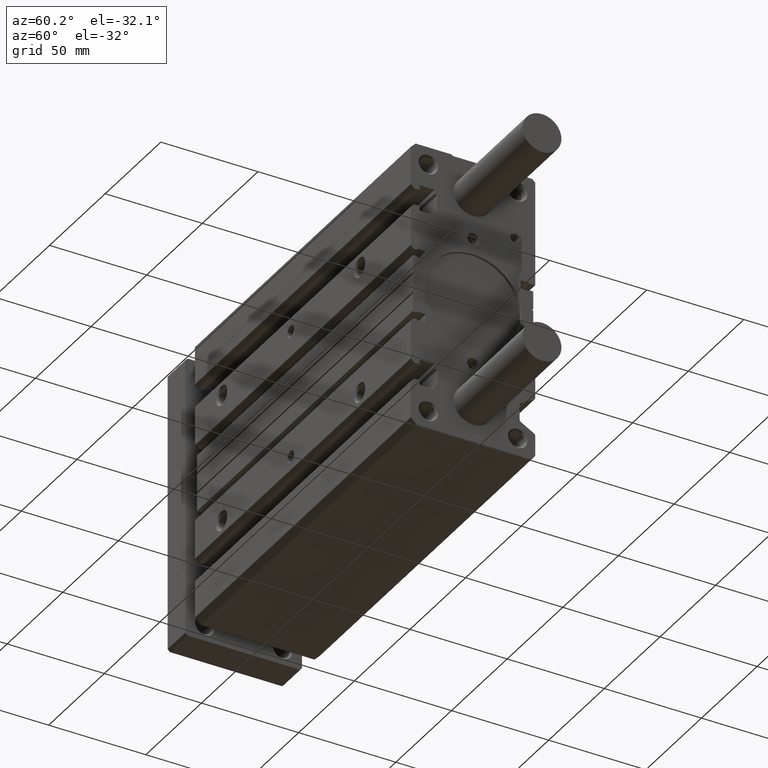
[diagram: clean part render]
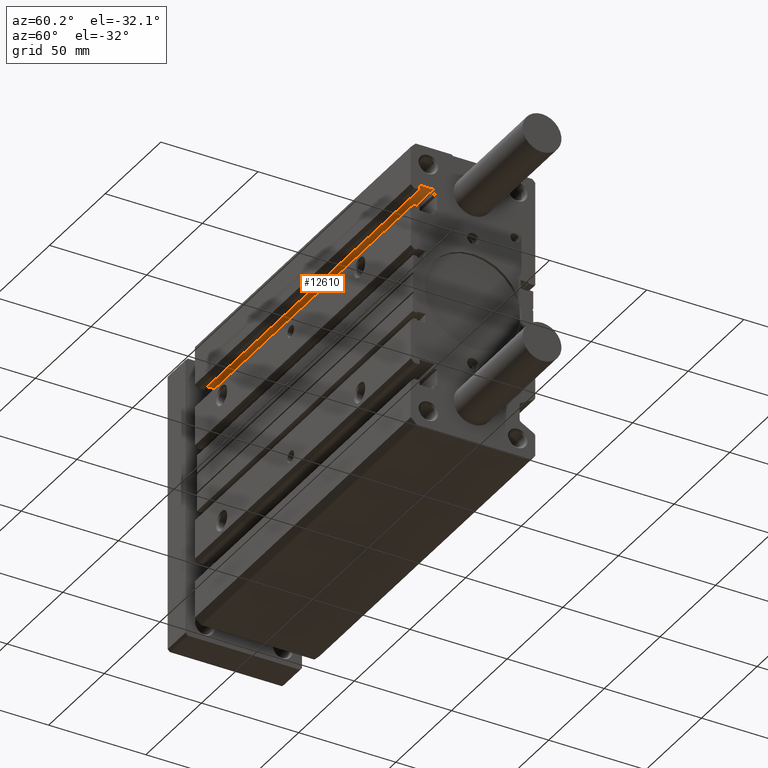
[diagram: same view with one face highlighted and labeled with its STEP entity id]
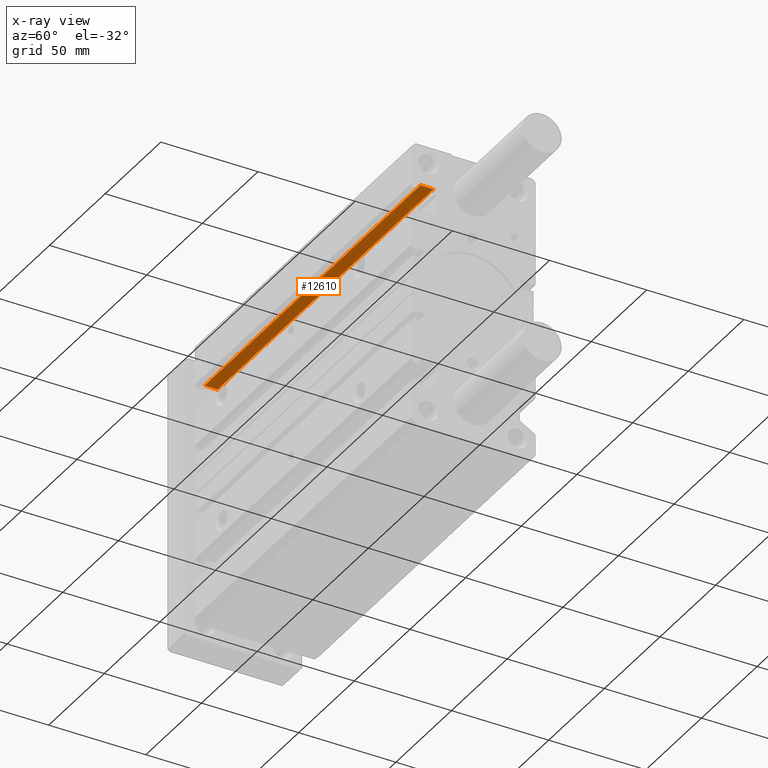
[diagram: x-ray of the same camera — body ghosted, the highlighted face saturated]
A machine part, auxiliary view. The second image highlights one B-rep face of the part: STEP entity #12610.
The next image is the same camera in x-ray: the body ghosted, the highlighted face saturated — about 0% of this face is hidden behind the body in this view.
In plain terms, the highlighted planar face has unit normal (0, 0, -1).
Its self-contained STEP definition (entity closure, byte-faithful):
#657 = ORIENTED_EDGE ( 'NONE', *, *, #12963, .T. ) ;
#851 = CARTESIAN_POINT ( 'NONE',  ( 0.000000000000000000, -20.39999999995000479, 52.70000174639989865 ) ) ;
#1683 = DIRECTION ( 'NONE',  ( -0.000000000000000000, -1.000000000000000000, -0.000000000000000000 ) ) ;
#1793 = CARTESIAN_POINT ( 'NONE',  ( 0.000000000000000000, -20.39999999995000479, 52.70000174639989865 ) ) ;
#2794 = DIRECTION ( 'NONE',  ( 0.000000000000000000, 0.000000000000000000, -1.000000000000000000 ) ) ;
#3994 = DIRECTION ( 'NONE',  ( -1.000000000000000000, 0.000000000000000000, -0.000000000000000000 ) ) ;
#4187 = ORIENTED_EDGE ( 'NONE', *, *, #5545, .T. ) ;
#4771 = VECTOR ( 'NONE', #10212, 1000.000000000000000 ) ;
#5263 = VECTOR ( 'NONE', #8022, 1000.000000000000000 ) ;
#5545 = EDGE_CURVE ( 'NONE', #10598, #5970, #10862, .T. ) ;
#5853 = PLANE ( 'NONE',  #6079 ) ;
#5960 = CARTESIAN_POINT ( 'NONE',  ( 0.000000000000000000, -20.40000329734540330, 52.70000174640669854 ) ) ;
#5970 = VERTEX_POINT ( 'NONE', #5960 ) ;
#6079 = AXIS2_PLACEMENT_3D ( 'NONE', #1793, #2794, #3994 ) ;
#7174 = LINE ( 'NONE', #9348, #4771 ) ;
#7370 = CARTESIAN_POINT ( 'NONE',  ( 0.000000000000000000, -27.09999999995000053, 52.70000174639989865 ) ) ;
#7577 = VECTOR ( 'NONE', #10464, 1000.000000000000000 ) ;
#7628 = LINE ( 'NONE', #7370, #7577 ) ;
#7796 = CARTESIAN_POINT ( 'NONE',  ( 194.0000000000000000, -27.09999856197575241, 52.70000174639989865 ) ) ;
#8022 = DIRECTION ( 'NONE',  ( 0.000000000000000000, 1.000000000000000000, 0.000000000000000000 ) ) ;
#8058 = CARTESIAN_POINT ( 'NONE',  ( 194.0000000000000000, -20.40000329734540330, 52.70000174640669854 ) ) ;
#8658 = VERTEX_POINT ( 'NONE', #7796 ) ;
#8706 = LINE ( 'NONE', #12740, #9447 ) ;
#8738 = VERTEX_POINT ( 'NONE', #8058 ) ;
#9348 = CARTESIAN_POINT ( 'NONE',  ( 0.000000000000000000, -20.40000329734540330, 52.70000174641349133 ) ) ;
#9352 = EDGE_CURVE ( 'NONE', #5970, #8738, #7174, .T. ) ;
#9447 = VECTOR ( 'NONE', #1683, 1000.000000000000000 ) ;
#9670 = ORIENTED_EDGE ( 'NONE', *, *, #12057, .T. ) ;
#10212 = DIRECTION ( 'NONE',  ( 1.000000000000000000, -0.000000000000000000, -0.000000000000000000 ) ) ;
#10343 = EDGE_LOOP ( 'NONE', ( #4187, #10616, #9670, #657 ) ) ;
#10464 = DIRECTION ( 'NONE',  ( -1.000000000000000000, 0.000000000000000000, -0.000000000000000000 ) ) ;
#10598 = VERTEX_POINT ( 'NONE', #12261 ) ;
#10616 = ORIENTED_EDGE ( 'NONE', *, *, #9352, .T. ) ;
#10862 = LINE ( 'NONE', #851, #5263 ) ;
#12057 = EDGE_CURVE ( 'NONE', #8738, #8658, #8706, .T. ) ;
#12261 = CARTESIAN_POINT ( 'NONE',  ( 0.000000000000000000, -27.09999856197575241, 52.70000174639989865 ) ) ;
#12610 = ADVANCED_FACE ( 'NONE', ( #12856 ), #5853, .T. ) ;
#12740 = CARTESIAN_POINT ( 'NONE',  ( 194.0000000000000000, -20.39999999995000479, 52.70000174639989865 ) ) ;
#12856 = FACE_OUTER_BOUND ( 'NONE', #10343, .T. ) ;
#12963 = EDGE_CURVE ( 'NONE', #8658, #10598, #7628, .T. ) ;